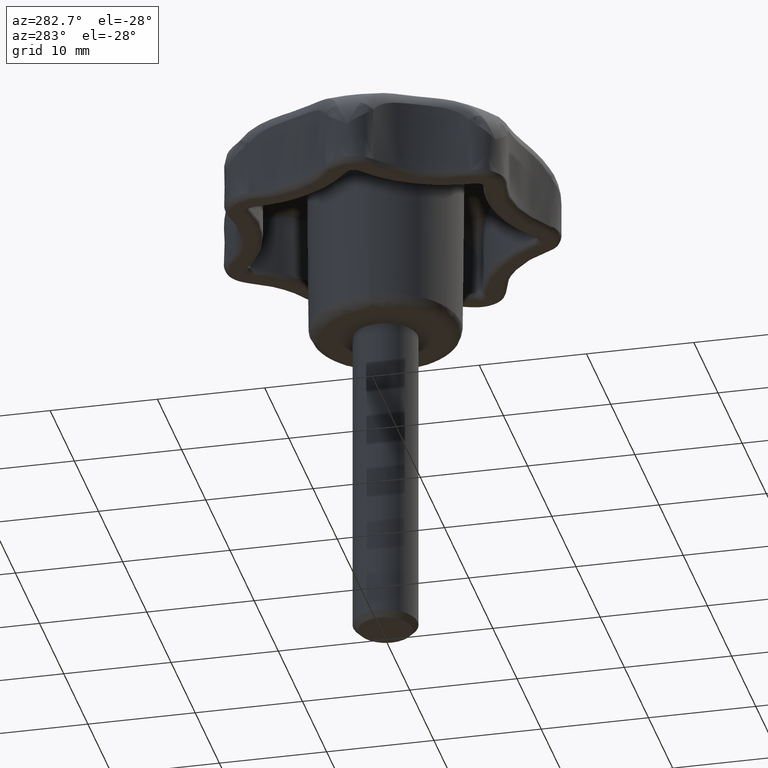
[diagram: clean part render]
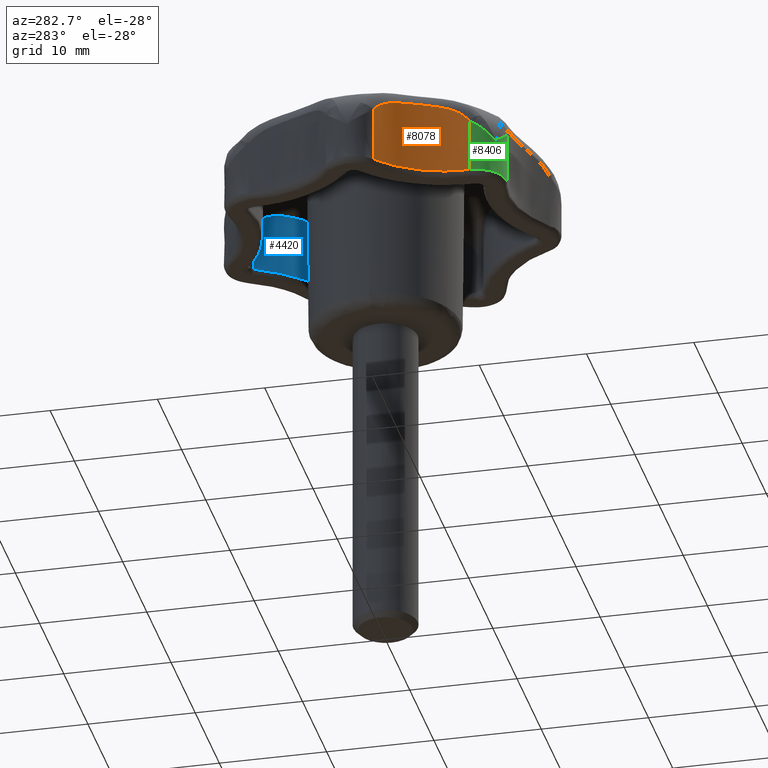
[diagram: same view with three faces highlighted in distinct colors, each labeled with its STEP entity id]
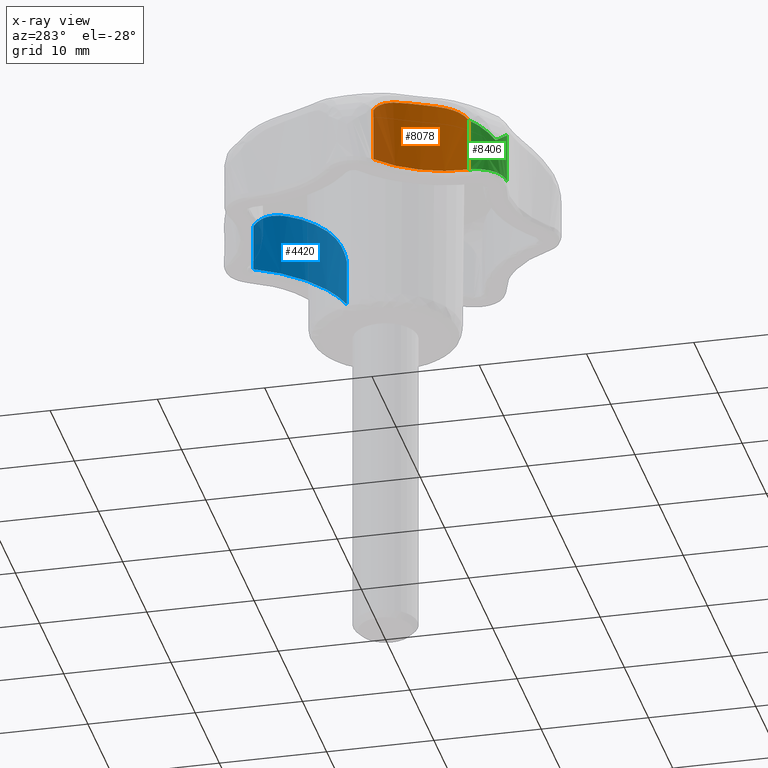
[diagram: x-ray of the same camera — body ghosted, the three highlighted faces saturated]
A machine part, auxiliary view with three faces highlighted in distinct colors.
The next image is the same camera in x-ray (body ghosted, the three faces saturated) — at least one of them is partly hidden behind the body in this view.
Their STEP definitions:

[orange] entity #8078 — the highlighted face is a freeform B-spline surface patch.
#3308=CARTESIAN_POINT('',(-11.029745739279459,-10.277883333098179,10.500000000000000));
#3309=VERTEX_POINT('',#3308);
#3433=CARTESIAN_POINT('',(-14.912507168994660,-2.215246249358240,10.500000000000000));
#3434=VERTEX_POINT('',#3433);
#3461=CARTESIAN_POINT('',(-14.912507168994660,-2.215246249358240,10.500000000000000));
#3462=CARTESIAN_POINT('',(-14.396320414952269,-2.614170561313141,10.500000000000000));
#3463=CARTESIAN_POINT('',(-13.601517495517729,-3.363703587868690,10.500000000000020));
#3464=CARTESIAN_POINT('',(-12.734983654140621,-4.499460412496485,10.499999999999959));
#3465=CARTESIAN_POINT('',(-12.030950182632040,-5.685190996557685,10.500000000000030));
#3466=CARTESIAN_POINT('',(-11.462219906707610,-7.051464885467566,10.500000000000069));
#3467=CARTESIAN_POINT('',(-11.090618001339569,-8.682122145656415,10.499999999999909));
#3468=CARTESIAN_POINT('',(-11.021680565799111,-9.746386973623885,10.500000000000099));
#3469=CARTESIAN_POINT('',(-11.029745739279459,-10.277883333098179,10.500000000000000));
#3470=B_SPLINE_CURVE_WITH_KNOTS('',3,(#3461,#3462,#3463,#3464,#3465,#3466,#3467,#3468,#3469),.UNSPECIFIED.,.F.,.U.,(4,1,1,1,1,1,4),(9.549217E-009,1.957097300897921,3.261831782556425,4.276623781948274,6.088744621064356,7.683423887059954,9.278093574410297),.UNSPECIFIED.);
#3471=EDGE_CURVE('',#3434,#3309,#3470,.T.);
#6945=CARTESIAN_POINT('',(-11.029745739279459,-10.277883333098179,15.546571991775100));
#6946=VERTEX_POINT('',#6945);
#7154=CARTESIAN_POINT('',(-14.912507168994660,-2.215246249358240,15.546571280850349));
#7155=VERTEX_POINT('',#7154);
#7166=CARTESIAN_POINT('',(-11.029745739279459,-10.277883333098179,15.546571991775100));
#7167=CARTESIAN_POINT('',(-11.028830874795490,-10.217319835432690,15.636566274154969));
#7168=CARTESIAN_POINT('',(-11.028393662594320,-10.151958221557029,15.723255099985691));
#7169=CARTESIAN_POINT('',(-11.029015073441309,-10.012566359798161,15.889006045202169));
#7170=CARTESIAN_POINT('',(-11.030070686234220,-9.939093129578540,15.967443842733029));
#7171=CARTESIAN_POINT('',(-11.036191792207800,-9.707997718288679,16.190172051211039));
#7172=CARTESIAN_POINT('',(-11.044198905737201,-9.539723701172090,16.321905740170781));
#7173=CARTESIAN_POINT('',(-11.065161153663970,-9.267740749330180,16.496254793449602));
#7174=CARTESIAN_POINT('',(-11.073646689771580,-9.173917759625063,16.550374412985221));
#7175=CARTESIAN_POINT('',(-11.093827732611310,-8.982525516829032,16.649991956975171));
#7176=CARTESIAN_POINT('',(-11.105459656285509,-8.885473780709218,16.695267105332391));
#7177=CARTESIAN_POINT('',(-11.145258576434500,-8.591036756753605,16.819168683386870));
#7178=CARTESIAN_POINT('',(-11.178344282570841,-8.390329635104564,16.885946288560511));
#7179=CARTESIAN_POINT('',(-11.238771656832860,-8.084798669973813,16.968104584701319));
#7180=CARTESIAN_POINT('',(-11.260747079709841,-7.982051090851025,16.992508014794840));
#7181=CARTESIAN_POINT('',(-11.308273959439520,-7.776024938453151,17.035971163535940));
#7182=CARTESIAN_POINT('',(-11.333657783402760,-7.673445452877012,17.054897973142971));
#7183=CARTESIAN_POINT('',(-11.414633791987679,-7.367098857663465,17.104828736527931));
#7184=CARTESIAN_POINT('',(-11.475046979296160,-7.164727689122318,17.129063919627121));
#7185=CARTESIAN_POINT('',(-11.608608596649770,-6.764066389506496,17.165509177455942));
#7186=CARTESIAN_POINT('',(-11.681755638744670,-6.565775089436023,17.177709785966339));
#7187=CARTESIAN_POINT('',(-11.840788627194110,-6.173511654188655,17.193608419562722));
#7188=CARTESIAN_POINT('',(-11.926672794491321,-5.979538980288464,17.197308591446848));
#7189=CARTESIAN_POINT('',(-12.065187905052660,-5.691926326083233,17.197304469960450));
#7190=CARTESIAN_POINT('',(-12.112975957834781,-5.596612461286411,17.196358064409729));
#7191=CARTESIAN_POINT('',(-12.211828985625290,-5.407108786853302,17.192471584509718));
#7192=CARTESIAN_POINT('',(-12.262957216899620,-5.312807116370783,17.189526781172191));
#7193=CARTESIAN_POINT('',(-12.420927855992760,-5.032340468228833,17.177325361555710));
#7194=CARTESIAN_POINT('',(-12.531619821505320,-4.849884590116159,17.164836185091119));
#7195=CARTESIAN_POINT('',(-12.763142504837560,-4.494154686616675,17.127766708371340));
#7196=CARTESIAN_POINT('',(-12.883976108133830,-4.320883039677636,17.103184352720540));
#7197=CARTESIAN_POINT('',(-13.135013983083180,-3.983930630558080,17.036322449596220));
#7198=CARTESIAN_POINT('',(-13.265223104245379,-3.820249932164534,16.994062672822800));
#7199=CARTESIAN_POINT('',(-13.466791487193570,-3.582395736954307,16.911390620770760));
#7200=CARTESIAN_POINT('',(-13.535207096235739,-3.504201623155788,16.880481121793469));
#7201=CARTESIAN_POINT('',(-13.671679247864070,-3.352919858234210,16.812107090194409));
#7202=CARTESIAN_POINT('',(-13.739960850557431,-3.279553974894359,16.774565349160699));
#7203=CARTESIAN_POINT('',(-13.944235749548930,-3.066356204596507,16.650719917944279));
#7204=CARTESIAN_POINT('',(-14.079689302734170,-2.933414463956532,16.553255211633338));
#7205=CARTESIAN_POINT('',(-14.278550306975490,-2.748158586803281,16.379385052873669));
#7206=CARTESIAN_POINT('',(-14.344441287939659,-2.688487608464036,16.316409365315579));
#7207=CARTESIAN_POINT('',(-14.471276511237329,-2.576437793987710,16.183246552197481));
#7208=CARTESIAN_POINT('',(-14.532483431125490,-2.523796429744055,16.112889598580999));
#7209=CARTESIAN_POINT('',(-14.708783750488980,-2.375490576011585,15.890310267582620));
#7210=CARTESIAN_POINT('',(-14.816611332826490,-2.289378995023747,15.726661258818959));
#7211=CARTESIAN_POINT('',(-14.912507168994660,-2.215246249358240,15.546571280850349));
#7212=B_SPLINE_CURVE_WITH_KNOTS('',3,(#7166,#7167,#7168,#7169,#7170,#7171,#7172,#7173,#7174,#7175,#7176,#7177,#7178,#7179,#7180,#7181,#7182,#7183,#7184,#7185,#7186,#7187,#7188,#7189,#7190,#7191,#7192,#7193,#7194,#7195,#7196,#7197,#7198,#7199,#7200,#7201,#7202,#7203,#7204,#7205,#7206,#7207,#7208,#7209,#7210,#7211),.UNSPECIFIED.,.F.,.U.,(4,2,2,2,2,2,2,2,2,2,2,2,2,2,2,2,2,2,2,2,2,2,4),(0.000000012593173,0.031249999999999,0.062499999999999,0.124999999999998,0.156249999999998,0.187499999999998,0.249999999999998,0.281249999999998,0.312499999999998,0.374999999999998,0.437499999999999,0.499999999999999,0.531249999999999,0.562499999999999,0.625000000000000,0.687500000000000,0.750000000000001,0.781250000000001,0.812500000000001,0.875000000000001,0.906250000000001,0.937500000000001,1.0),.UNSPECIFIED.);
#7213=EDGE_CURVE('',#6946,#7155,#7212,.T.);
#8050=CARTESIAN_POINT('',(-11.037125899789901,-10.539571197011259,17.364738491449931));
#8051=CARTESIAN_POINT('',(-11.037125899789901,-10.539571197011259,10.328381537713749));
#8052=CARTESIAN_POINT('',(-10.812020237767189,-5.090142046552180,17.364738491449931));
#8053=CARTESIAN_POINT('',(-10.812020237767189,-5.090142046552180,10.328381537713751));
#8054=CARTESIAN_POINT('',(-15.271606447328201,-1.950230986595035,17.364738491449934));
#8055=CARTESIAN_POINT('',(-15.271606447328201,-1.950230986595035,10.328381537713756));
#8063=(BOUNDED_SURFACE()B_SPLINE_SURFACE(1,2,((#8050,#8052,#8054),(#8051,#8053,#8055)),.UNSPECIFIED.,.F.,.F.,.U.)B_SPLINE_SURFACE_WITH_KNOTS((2,2),(3,3),(0.0,7.036356953736185),(0.0,10.198982490881971),.UNSPECIFIED.)GEOMETRIC_REPRESENTATION_ITEM()RATIONAL_B_SPLINE_SURFACE(((1.0,0.876384241774721,0.996520596947353),(1.0,0.876384241774721,0.996520596947353)))REPRESENTATION_ITEM('')SURFACE());
#8064=CARTESIAN_POINT('',(-14.912507168994660,-2.215246249358240,15.546571280850349));
#8065=CARTESIAN_POINT('',(-14.912507168994660,-2.215246249358240,10.500000000000000));
#8066=QUASI_UNIFORM_CURVE('',1,(#8064,#8065),.UNSPECIFIED.,.F.,.U.);
#8067=EDGE_CURVE('',#7155,#3434,#8066,.T.);
#8068=ORIENTED_EDGE('',*,*,#8067,.T.);
#8069=ORIENTED_EDGE('',*,*,#3471,.T.);
#8070=CARTESIAN_POINT('',(-11.029745739279459,-10.277883333098179,15.546571991775100));
#8071=CARTESIAN_POINT('',(-11.029745739279459,-10.277883333098179,10.500000000000000));
#8072=QUASI_UNIFORM_CURVE('',1,(#8070,#8071),.UNSPECIFIED.,.F.,.U.);
#8073=EDGE_CURVE('',#6946,#3309,#8072,.T.);
#8074=ORIENTED_EDGE('',*,*,#8073,.F.);
#8075=ORIENTED_EDGE('',*,*,#7213,.T.);
#8076=EDGE_LOOP('',(#8068,#8069,#8074,#8075));
#8077=FACE_OUTER_BOUND('',#8076,.T.);
#8078=ADVANCED_FACE('',(#8077),#8063,.F.);

[blue] entity #4420 — the highlighted face is a freeform B-spline surface patch.
#2561=CARTESIAN_POINT('',(12.017450849140200,6.314172215130999,10.500000000000000));
#2562=VERTEX_POINT('',#2561);
#2682=CARTESIAN_POINT('',(3.481727720352060,13.121184527456339,10.500000000000000));
#2683=VERTEX_POINT('',#2682);
#2712=CARTESIAN_POINT('',(3.481727720352060,13.121184527456339,10.500000000000000));
#2713=CARTESIAN_POINT('',(3.692297837609277,12.666463140824380,10.500000000000011));
#2714=CARTESIAN_POINT('',(4.225708674880621,11.679063192735301,10.500000000000000));
#2715=CARTESIAN_POINT('',(5.047680444561741,10.558837844413830,10.500000000000011));
#2716=CARTESIAN_POINT('',(6.043936933973402,9.471609860590279,10.499999999999970));
#2717=CARTESIAN_POINT('',(7.195321295521230,8.453673037408329,10.500000000000091));
#2718=CARTESIAN_POINT('',(8.791064814491639,7.435106687688832,10.500000000000030));
#2719=CARTESIAN_POINT('',(10.445940033040589,6.718604398230839,10.500000000000060));
#2720=CARTESIAN_POINT('',(11.527273578965790,6.418277577565291,10.499999999999771));
#2721=CARTESIAN_POINT('',(12.017450849140200,6.314172215130999,10.500000000000000));
#2722=B_SPLINE_CURVE_WITH_KNOTS('',3,(#2712,#2713,#2714,#2715,#2716,#2717,#2718,#2719,#2720,#2721),.UNSPECIFIED.,.F.,.U.,(4,1,1,1,1,1,1,4),(6.939338E-009,1.503335730312733,3.360411819300167,4.156301553641144,5.924921873802115,7.958862734729991,9.815938823718208,11.319274547092499),.UNSPECIFIED.);
#2723=EDGE_CURVE('',#2683,#2562,#2722,.T.);
#4325=CARTESIAN_POINT('',(3.312299996300228,13.504142593500291,16.787372697475099));
#4326=CARTESIAN_POINT('',(3.312299996300228,13.504142593500291,10.342815682563121));
#4327=CARTESIAN_POINT('',(5.924453581359839,7.314910058145260,16.787372697475107));
#4328=CARTESIAN_POINT('',(5.924453581359839,7.314910058145260,10.342815682563124));
#4329=CARTESIAN_POINT('',(12.551371434652079,6.213136263596836,16.787372697475103));
#4330=CARTESIAN_POINT('',(12.551371434652079,6.213136263596836,10.342815682563124));
#4338=(BOUNDED_SURFACE()B_SPLINE_SURFACE(1,2,((#4325,#4327,#4329),(#4326,#4328,#4330)),.UNSPECIFIED.,.F.,.F.,.U.)B_SPLINE_SURFACE_WITH_KNOTS((2,2),(3,3),(0.0,6.444557014911981),(0.0,12.547507963057010),.UNSPECIFIED.)GEOMETRIC_REPRESENTATION_ITEM()RATIONAL_B_SPLINE_SURFACE(((1.0,0.875344955250334,0.998557894009322),(1.0,0.875344955250334,0.998557894009322)))REPRESENTATION_ITEM('')SURFACE());
#4339=CARTESIAN_POINT('',(3.481727720352060,13.121184527456339,14.898685659456680));
#4340=VERTEX_POINT('',#4339);
#4341=CARTESIAN_POINT('',(3.481727720352060,13.121184527456339,14.898685659456680));
#4342=CARTESIAN_POINT('',(3.481727720352060,13.121184527456339,10.500000000000000));
#4343=QUASI_UNIFORM_CURVE('',1,(#4341,#4342),.UNSPECIFIED.,.F.,.U.);
#4344=EDGE_CURVE('',#4340,#2683,#4343,.T.);
#4345=ORIENTED_EDGE('',*,*,#4344,.T.);
#4346=ORIENTED_EDGE('',*,*,#2723,.T.);
#4347=CARTESIAN_POINT('',(12.017450849140200,6.314172215130999,14.898687009915660));
#4348=VERTEX_POINT('',#4347);
#4349=CARTESIAN_POINT('',(12.017450849140200,6.314172215130999,14.898687009915660));
#4350=CARTESIAN_POINT('',(12.017450849140200,6.314172215130999,10.500000000000000));
#4351=QUASI_UNIFORM_CURVE('',1,(#4349,#4350),.UNSPECIFIED.,.F.,.U.);
#4352=EDGE_CURVE('',#4348,#2562,#4351,.T.);
#4353=ORIENTED_EDGE('',*,*,#4352,.F.);
#4354=CARTESIAN_POINT('',(8.914203533824828,7.428860688450190,16.533693989944599));
#4355=VERTEX_POINT('',#4354);
#4356=CARTESIAN_POINT('',(8.914203533824828,7.428860688450190,16.533693989944599));
#4357=CARTESIAN_POINT('',(9.129754618459293,7.316532538532132,16.513018083331630));
#4358=CARTESIAN_POINT('',(9.348647971868925,7.210653010310445,16.484497548437851));
#4359=CARTESIAN_POINT('',(9.687623814838467,7.059022420045143,16.421038600679911));
#4360=CARTESIAN_POINT('',(9.804873343415510,7.008796606162576,16.395570937858519));
#4361=CARTESIAN_POINT('',(10.038129470261190,6.913097993472351,16.336231969802299));
#4362=CARTESIAN_POINT('',(10.154336306378839,6.867535500584219,16.302328105248659));
#4363=CARTESIAN_POINT('',(10.385348666567809,6.780935907462197,16.224307713409662));
#4364=CARTESIAN_POINT('',(10.500156384568930,6.739898558746411,16.180198582541230));
#4365=CARTESIAN_POINT('',(10.670805516941300,6.681694646438307,16.104776610827368));
#4366=CARTESIAN_POINT('',(10.727310397499719,6.662894296903904,16.078129629845211));
#4367=CARTESIAN_POINT('',(10.838494030027650,6.626775573742772,16.022090265605762));
#4368=CARTESIAN_POINT('',(10.893309141900479,6.609410324818223,15.992639211539579));
#4369=CARTESIAN_POINT('',(11.163192339070950,6.525935468205240,15.837827108180710));
#4370=CARTESIAN_POINT('',(11.365927816457059,6.469847906748194,15.690166318366900));
#4371=CARTESIAN_POINT('',(11.596051405124690,6.411421584608708,15.466570134912050));
#4372=CARTESIAN_POINT('',(11.640860667127299,6.400333774007064,15.419866287425201));
#4373=CARTESIAN_POINT('',(11.726436980326310,6.379631727484833,15.323865638136271));
#4374=CARTESIAN_POINT('',(11.767399266336740,6.369967253840735,15.274387660089330));
#4375=CARTESIAN_POINT('',(11.884611724471540,6.342892363165351,15.121398525922530));
#4376=CARTESIAN_POINT('',(11.955221320707590,6.327390095923584,15.013359140807481));
#4377=CARTESIAN_POINT('',(12.017450849140200,6.314172215130999,14.898687009915660));
#4378=B_SPLINE_CURVE_WITH_KNOTS('',3,(#4356,#4357,#4358,#4359,#4360,#4361,#4362,#4363,#4364,#4365,#4366,#4367,#4368,#4369,#4370,#4371,#4372,#4373,#4374,#4375,#4376,#4377),.UNSPECIFIED.,.F.,.U.,(4,2,2,2,2,2,2,2,2,2,4),(0.690705518736696,0.750000000000002,0.781250000000001,0.812500000000001,0.843750000000000,0.859375000000000,0.875000000000000,0.937499999999999,0.953125000000000,0.968750000000000,1.0),.UNSPECIFIED.);
#4379=EDGE_CURVE('',#4355,#4348,#4378,.T.);
#4380=ORIENTED_EDGE('',*,*,#4379,.F.);
#4381=CARTESIAN_POINT('',(5.259006362584521,10.343783053078360,16.533693989944599));
#4382=VERTEX_POINT('',#4381);
#4383=CARTESIAN_POINT('',(5.259006362584521,10.343783053078360,16.533693989944599));
#4384=CARTESIAN_POINT('',(5.718018776297332,9.803636638519066,16.594114904625659));
#4385=CARTESIAN_POINT('',(6.839627449582793,8.697282552894992,16.667656154045549));
#4386=CARTESIAN_POINT('',(8.155323026995065,7.823805438390286,16.606659540487570));
#4387=CARTESIAN_POINT('',(8.914203533824828,7.428860688450190,16.533693989944599));
#4388=B_SPLINE_CURVE_WITH_KNOTS('',3,(#4383,#4384,#4385,#4386,#4387),.UNSPECIFIED.,.F.,.U.,(4,1,4),(2.043757E-009,2.134214004961942,4.709981963971095),.UNSPECIFIED.);
#4389=EDGE_CURVE('',#4382,#4355,#4388,.T.);
#4390=ORIENTED_EDGE('',*,*,#4389,.F.);
#4391=CARTESIAN_POINT('',(3.481727720352060,13.121184527456339,14.898685659456680));
#4392=CARTESIAN_POINT('',(3.508448262401999,13.063484890973250,15.013301652935240));
#4393=CARTESIAN_POINT('',(3.539170486192317,12.998320378515100,15.120926489137080));
#4394=CARTESIAN_POINT('',(3.608621099680733,12.855036099111190,15.323655848891150));
#4395=CARTESIAN_POINT('',(3.647355537321681,12.776900884547731,15.418746719679371));
#4396=CARTESIAN_POINT('',(3.711807616802846,12.650876313425719,15.552529599268039));
#4397=CARTESIAN_POINT('',(3.734441675870291,12.607226231928250,15.595794046091820));
#4398=CARTESIAN_POINT('',(3.781434442398150,12.518004520511250,15.678584377690960));
#4399=CARTESIAN_POINT('',(3.805758331537906,12.472493682199291,15.718080996764730));
#4400=CARTESIAN_POINT('',(3.881203809261124,12.333553465768970,15.831288260313160));
#4401=CARTESIAN_POINT('',(3.934796265218325,12.237725098216210,15.899730724088201));
#4402=CARTESIAN_POINT('',(4.020173010377325,12.090126341702090,15.993130906235111));
#4403=CARTESIAN_POINT('',(4.049464150822787,12.040281523719560,16.022716172262989));
#4404=CARTESIAN_POINT('',(4.109725888915236,11.939435893705630,16.078965624863031));
#4405=CARTESIAN_POINT('',(4.140722249631378,11.888398555119251,16.105637531004881));
#4406=CARTESIAN_POINT('',(4.235227823002548,11.735374245238861,16.180767849516229));
#4407=CARTESIAN_POINT('',(4.300574486471684,11.632932765781581,16.224678943476921));
#4408=CARTESIAN_POINT('',(4.503487583470308,11.325309545727309,16.341166254771650));
#4409=CARTESIAN_POINT('',(4.647926039927205,11.119861142908400,16.398595952942181));
#4410=CARTESIAN_POINT('',(4.877866187453310,10.814055365524361,16.464186191083780));
#4411=CARTESIAN_POINT('',(4.956936723447866,10.712253081772440,16.482622712604680));
#4412=CARTESIAN_POINT('',(5.110060049485679,10.521453645515990,16.512154803885458));
#4413=CARTESIAN_POINT('',(5.183926030996587,10.432058008507370,16.523830588712819));
#4414=CARTESIAN_POINT('',(5.259006362584521,10.343783053078360,16.533693989944599));
#4415=B_SPLINE_CURVE_WITH_KNOTS('',3,(#4391,#4392,#4393,#4394,#4395,#4396,#4397,#4398,#4399,#4400,#4401,#4402,#4403,#4404,#4405,#4406,#4407,#4408,#4409,#4410,#4411,#4412,#4413,#4414),.UNSPECIFIED.,.F.,.U.,(4,2,2,2,2,2,2,2,2,2,2,4),(0.0,0.031250000000001,0.062500000000003,0.078125000000004,0.093750000000004,0.125000000000005,0.140625000000005,0.156250000000005,0.187500000000006,0.250000000000006,0.281250000000006,0.309450047013337),.UNSPECIFIED.);
#4416=EDGE_CURVE('',#4340,#4382,#4415,.T.);
#4417=ORIENTED_EDGE('',*,*,#4416,.F.);
#4418=EDGE_LOOP('',(#4345,#4346,#4353,#4380,#4390,#4417));
#4419=FACE_OUTER_BOUND('',#4418,.T.);
#4420=ADVANCED_FACE('',(#4419),#4338,.T.);

[green] entity #8406 — the highlighted face is a freeform B-spline surface patch.
#1914=CARTESIAN_POINT('',(-9.975837610576161,-12.509303073964240,13.799598391954920));
#1915=VERTEX_POINT('',#1914);
#3166=CARTESIAN_POINT('',(-7.565846936945389,-13.040250881167580,10.500000000000000));
#3167=VERTEX_POINT('',#3166);
#3308=CARTESIAN_POINT('',(-11.029745739279459,-10.277883333098179,10.500000000000000));
#3309=VERTEX_POINT('',#3308);
#3338=CARTESIAN_POINT('',(-11.029745739279459,-10.277883333098179,10.500000000000000));
#3339=CARTESIAN_POINT('',(-11.034321190126910,-10.570690181714790,10.500000000000050));
#3340=CARTESIAN_POINT('',(-10.961714896507170,-11.077534373942351,10.499999999999901));
#3341=CARTESIAN_POINT('',(-10.671531327731140,-11.740241026116930,10.500000000000110));
#3342=CARTESIAN_POINT('',(-10.327063011839670,-12.201986411481430,10.499999999999940));
#3343=CARTESIAN_POINT('',(-9.971249277514108,-12.525108877847209,10.500000000000041));
#3344=CARTESIAN_POINT('',(-9.573568082471645,-12.794177431874029,10.499999999999980));
#3345=CARTESIAN_POINT('',(-9.083502484711330,-13.010994502931609,10.500000000000000));
#3346=CARTESIAN_POINT('',(-8.374371852515319,-13.151386960987351,10.500000000000011));
#3347=CARTESIAN_POINT('',(-7.863223059871032,-13.113075850765160,10.499999999999989));
#3348=CARTESIAN_POINT('',(-7.565846936945389,-13.040250881167580,10.500000000000000));
#3349=B_SPLINE_CURVE_WITH_KNOTS('',3,(#3338,#3339,#3340,#3341,#3342,#3343,#3344,#3345,#3346,#3347,#3348),.UNSPECIFIED.,.F.,.U.,(4,1,1,1,1,1,1,1,4),(0.000000048223051,0.878480992627277,1.517385184181376,2.156293359986424,2.595508373453673,2.954886554916555,3.593794275982625,4.192770056665664,5.111178033459301),.UNSPECIFIED.);
#3350=EDGE_CURVE('',#3309,#3167,#3349,.T.);
#6945=CARTESIAN_POINT('',(-11.029745739279459,-10.277883333098179,15.546571991775100));
#6946=VERTEX_POINT('',#6945);
#6957=CARTESIAN_POINT('',(-9.975837610576161,-12.509303073964240,13.799598391954920));
#6958=CARTESIAN_POINT('',(-9.995987283237065,-12.493234240166659,13.818410525612570));
#6959=CARTESIAN_POINT('',(-10.016500613296600,-12.476407772736859,13.837619235286420));
#6960=CARTESIAN_POINT('',(-10.056587340115390,-12.442557658883930,13.875746213088460));
#6961=CARTESIAN_POINT('',(-10.076393284104761,-12.425350556971241,13.894807726062190));
#6962=CARTESIAN_POINT('',(-10.135082418925681,-12.372896660158730,13.951980652406730));
#6963=CARTESIAN_POINT('',(-10.173232907039250,-12.336820436831109,13.990077214629091));
#6964=CARTESIAN_POINT('',(-10.284584162191191,-12.225425818141570,14.104241310128600));
#6965=CARTESIAN_POINT('',(-10.354677001066630,-12.146953468819920,14.180173224929700));
#6966=CARTESIAN_POINT('',(-10.485902327789150,-11.982189928118050,14.331565770348330));
#6967=CARTESIAN_POINT('',(-10.546857636075350,-11.896133719045659,14.406815471157680));
#6968=CARTESIAN_POINT('',(-10.659068454789550,-11.716998555651260,14.556602586899240));
#6969=CARTESIAN_POINT('',(-10.710334240005380,-11.623862769478739,14.631175329439250));
#6970=CARTESIAN_POINT('',(-10.779208481540900,-11.479788852017601,14.742075744521170));
#6971=CARTESIAN_POINT('',(-10.800880410091921,-11.430918858770800,14.778971093483200));
#6972=CARTESIAN_POINT('',(-10.841287804241491,-11.332281267056249,14.852083620225550));
#6973=CARTESIAN_POINT('',(-10.860050112127700,-11.282469286142680,14.888337311038679));
#6974=CARTESIAN_POINT('',(-10.912022808358090,-11.131606416291090,14.996266548604639));
#6975=CARTESIAN_POINT('',(-10.940929837149881,-11.029131897207000,15.067111909844320));
#6976=CARTESIAN_POINT('',(-11.010120225424590,-10.716302340566500,15.276855823725040));
#6977=CARTESIAN_POINT('',(-11.033110038344160,-10.500591366859140,15.412965958233229));
#6978=CARTESIAN_POINT('',(-11.029745739279459,-10.277883333098179,15.546571991775100));
#6979=B_SPLINE_CURVE_WITH_KNOTS('',3,(#6957,#6958,#6959,#6960,#6961,#6962,#6963,#6964,#6965,#6966,#6967,#6968,#6969,#6970,#6971,#6972,#6973,#6974,#6975,#6976,#6977,#6978),.UNSPECIFIED.,.F.,.U.,(4,2,2,2,2,2,2,2,2,2,4),(0.000000045427134,0.031250045427134,0.062500045427133,0.125000045427132,0.250000045427130,0.375000045427129,0.500000045427127,0.562500045427128,0.625000045427128,0.750000045427130,1.0),.UNSPECIFIED.);
#6980=EDGE_CURVE('',#1915,#6946,#6979,.T.);
#7518=CARTESIAN_POINT('',(-7.565846936945389,-13.040250881167580,15.546571679087700));
#7519=VERTEX_POINT('',#7518);
#7614=CARTESIAN_POINT('',(-7.565846936945389,-13.040250881167580,15.546571679087700));
#7615=CARTESIAN_POINT('',(-7.782222581078590,-13.093087999523650,15.412965648738901));
#7616=CARTESIAN_POINT('',(-7.997640920656588,-13.118674720693880,15.276855603277410));
#7617=CARTESIAN_POINT('',(-8.318023643144301,-13.120830098199409,15.067111704569450));
#7618=CARTESIAN_POINT('',(-8.424361366656839,-13.115450516858150,14.996266356718371));
#7619=CARTESIAN_POINT('',(-8.583006855136917,-13.098350971557229,14.888337138917120));
#7620=CARTESIAN_POINT('',(-8.635744969505376,-13.091143261980440,14.852083454639031));
#7621=CARTESIAN_POINT('',(-8.740901036863040,-13.073697852695251,14.778970940838970));
#7622=CARTESIAN_POINT('',(-8.793368232484266,-13.063443859694241,14.742075598316800));
#7623=CARTESIAN_POINT('',(-8.949155927245240,-13.028355836519991,14.631175202765951));
#7624=CARTESIAN_POINT('',(-9.051364347869365,-12.999100008688460,14.556602473192180));
#7625=CARTESIAN_POINT('',(-9.250977540007307,-12.929563780130190,14.406815381033271));
#7626=CARTESIAN_POINT('',(-9.348440002050547,-12.889286009530510,14.331565692975060));
#7627=CARTESIAN_POINT('',(-9.538273018296188,-12.798014015156969,14.180173170377479));
#7628=CARTESIAN_POINT('',(-9.630375053548006,-12.747140241143880,14.104241267087870));
#7629=CARTESIAN_POINT('',(-9.763754800993659,-12.663368353844040,13.990077188118670));
#7630=CARTESIAN_POINT('',(-9.807415812932501,-12.634202067817061,13.951980631329640));
#7631=CARTESIAN_POINT('',(-9.871614160336602,-12.588656444277809,13.894807713014840));
#7632=CARTESIAN_POINT('',(-9.892797087402279,-12.573176004349691,13.875746202681770));
#7633=CARTESIAN_POINT('',(-9.934718655803865,-12.541626668993830,13.837619230130279));
#7634=CARTESIAN_POINT('',(-9.955687899733144,-12.525371879308830,13.818410523071041));
#7635=CARTESIAN_POINT('',(-9.975837610576161,-12.509303073964240,13.799598391954920));
#7636=B_SPLINE_CURVE_WITH_KNOTS('',3,(#7614,#7615,#7616,#7617,#7618,#7619,#7620,#7621,#7622,#7623,#7624,#7625,#7626,#7627,#7628,#7629,#7630,#7631,#7632,#7633,#7634,#7635),.UNSPECIFIED.,.F.,.U.,(4,2,2,2,2,2,2,2,2,2,4),(0.0,0.249999999999999,0.374999999999999,0.437499999999999,0.499999999999999,0.625000000000000,0.750000000000000,0.875000000000000,0.937500000000000,0.968750000000000,1.0),.UNSPECIFIED.);
#7637=EDGE_CURVE('',#7519,#1915,#7636,.T.);
#8070=CARTESIAN_POINT('',(-11.029745739279459,-10.277883333098179,15.546571991775100));
#8071=CARTESIAN_POINT('',(-11.029745739279459,-10.277883333098179,10.500000000000000));
#8072=QUASI_UNIFORM_CURVE('',1,(#8070,#8071),.UNSPECIFIED.,.F.,.U.);
#8073=EDGE_CURVE('',#6946,#3309,#8072,.T.);
#8238=CARTESIAN_POINT('',(-7.565846936945389,-13.040250881167580,15.546571679087700));
#8239=CARTESIAN_POINT('',(-7.565846936945389,-13.040250881167580,10.500000000000000));
#8240=QUASI_UNIFORM_CURVE('',1,(#8238,#8239),.UNSPECIFIED.,.F.,.U.);
#8241=EDGE_CURVE('',#7519,#3167,#8240,.T.);
#8385=CARTESIAN_POINT('',(-11.027680143662490,-10.204610718409191,15.672736291569480));
#8386=CARTESIAN_POINT('',(-11.027680143662490,-10.204610718409191,10.370681592710760));
#8387=CARTESIAN_POINT('',(-11.189695291141096,-14.126721095719688,15.672736291569475));
#8388=CARTESIAN_POINT('',(-11.189695291141096,-14.126721095719688,10.370681592710763));
#8389=CARTESIAN_POINT('',(-7.428520101284461,-13.002995190070941,15.672736291569480));
#8390=CARTESIAN_POINT('',(-7.428520101284461,-13.002995190070941,10.370681592710760));
#8398=(BOUNDED_SURFACE()B_SPLINE_SURFACE(1,2,((#8385,#8387,#8389),(#8386,#8388,#8390)),.UNSPECIFIED.,.F.,.F.,.U.)B_SPLINE_SURFACE_WITH_KNOTS((2,2),(3,3),(0.0,5.302054698858713),(0.0,5.768379044682553),.UNSPECIFIED.)GEOMETRIC_REPRESENTATION_ITEM()RATIONAL_B_SPLINE_SURFACE(((1.0,0.580702955710940,1.0),(1.0,0.580702955710940,1.0)))REPRESENTATION_ITEM('')SURFACE());
#8399=ORIENTED_EDGE('',*,*,#8073,.T.);
#8400=ORIENTED_EDGE('',*,*,#3350,.T.);
#8401=ORIENTED_EDGE('',*,*,#8241,.F.);
#8402=ORIENTED_EDGE('',*,*,#7637,.T.);
#8403=ORIENTED_EDGE('',*,*,#6980,.T.);
#8404=EDGE_LOOP('',(#8399,#8400,#8401,#8402,#8403));
#8405=FACE_OUTER_BOUND('',#8404,.T.);
#8406=ADVANCED_FACE('',(#8405),#8398,.T.);